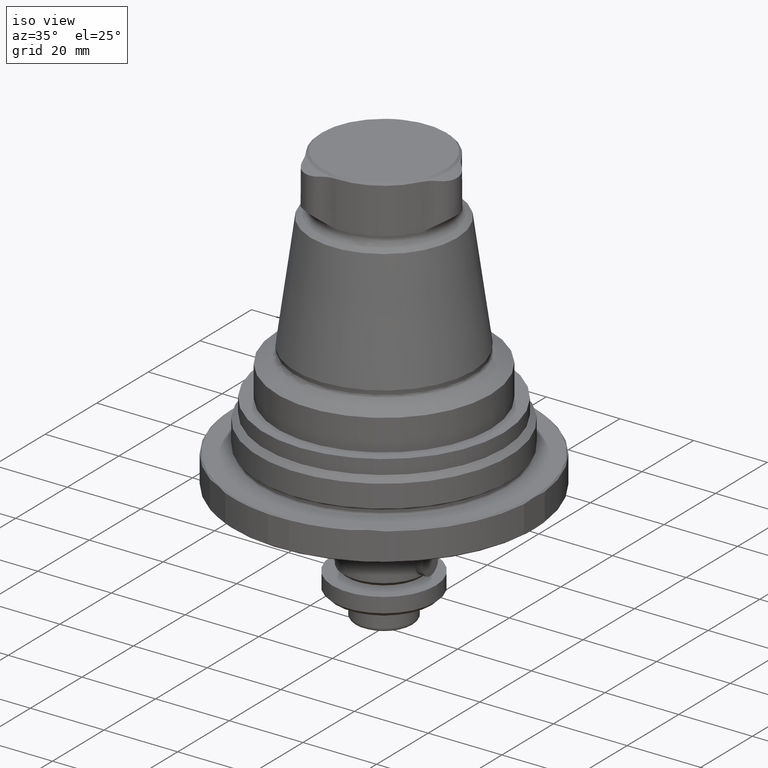
[diagram: clean part render]
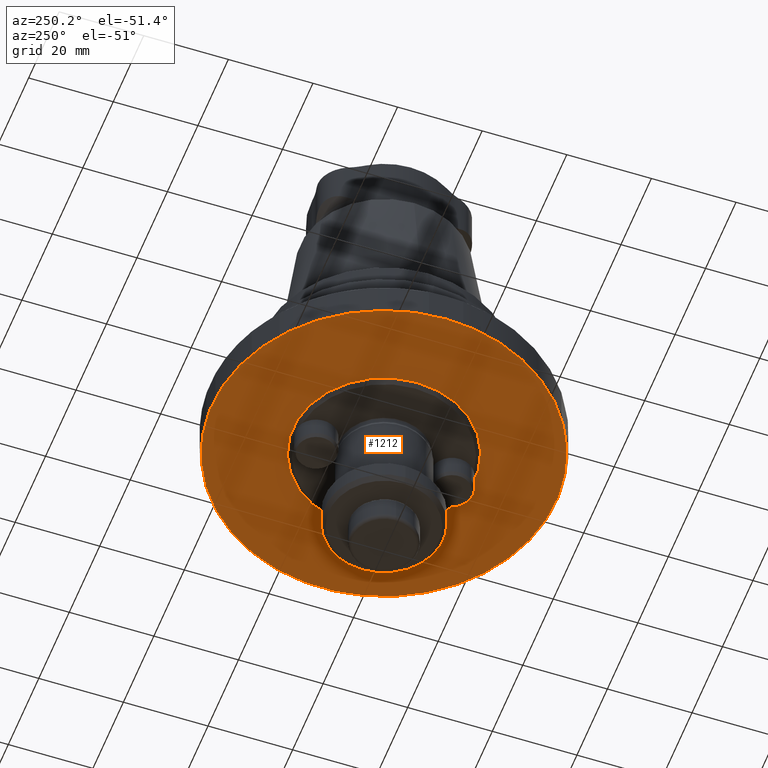
[diagram: tour spotlight — one face highlighted and labeled with its STEP entity id]
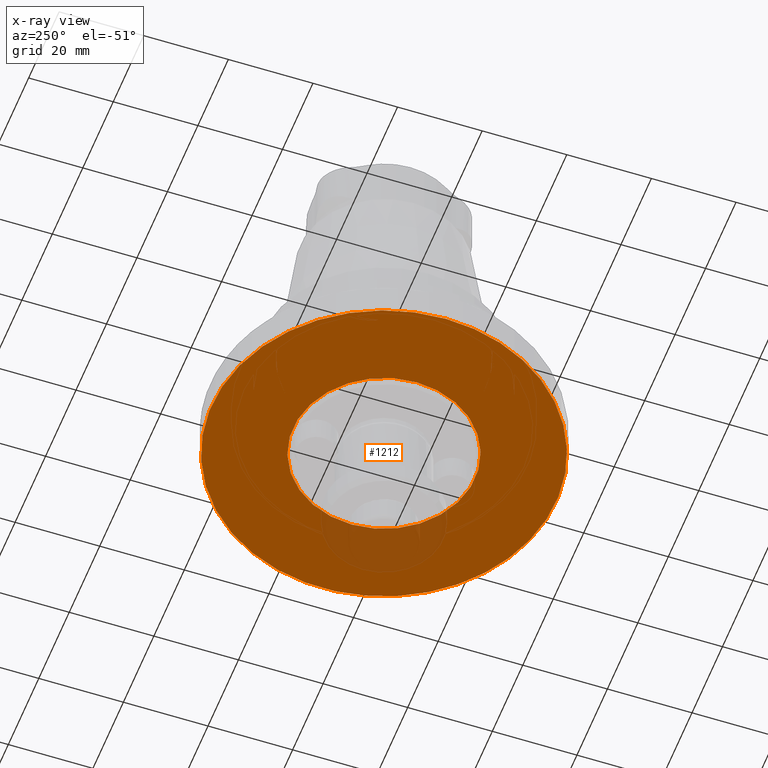
[diagram: x-ray of the same camera — body ghosted, this tour face saturated]
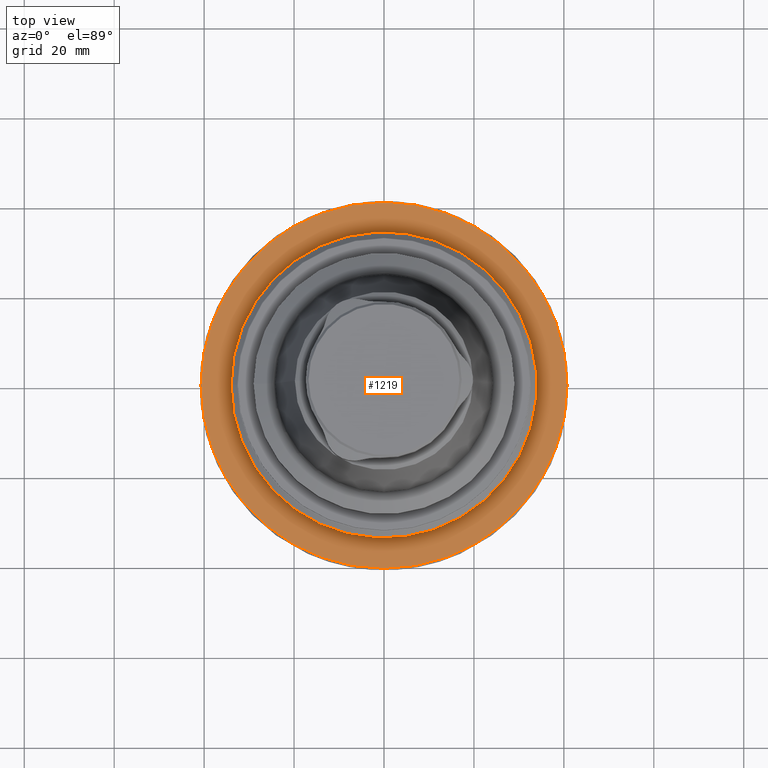
[diagram: tour spotlight — one face highlighted and labeled with its STEP entity id]
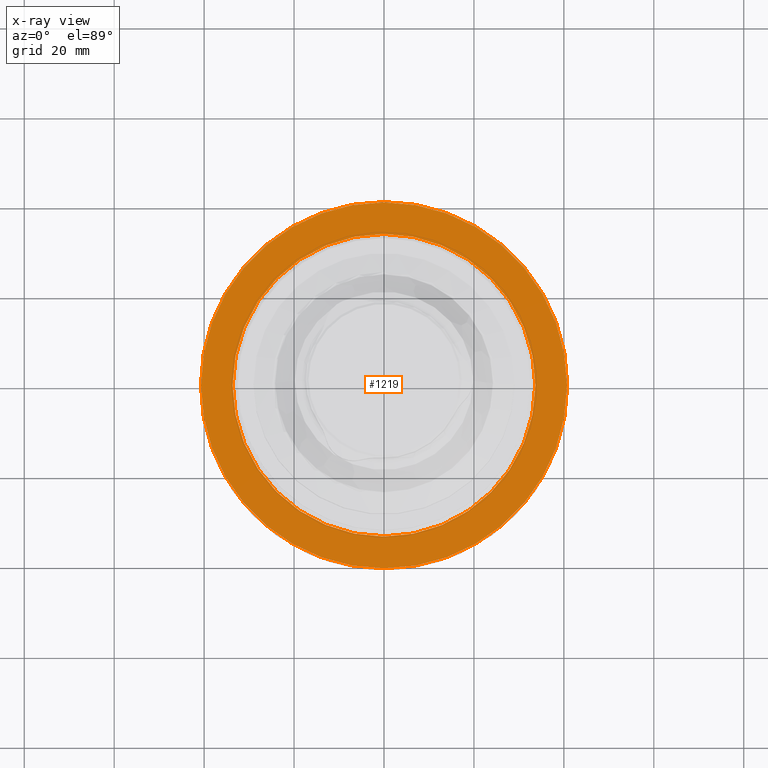
[diagram: x-ray of the same camera — body ghosted, this tour face saturated]
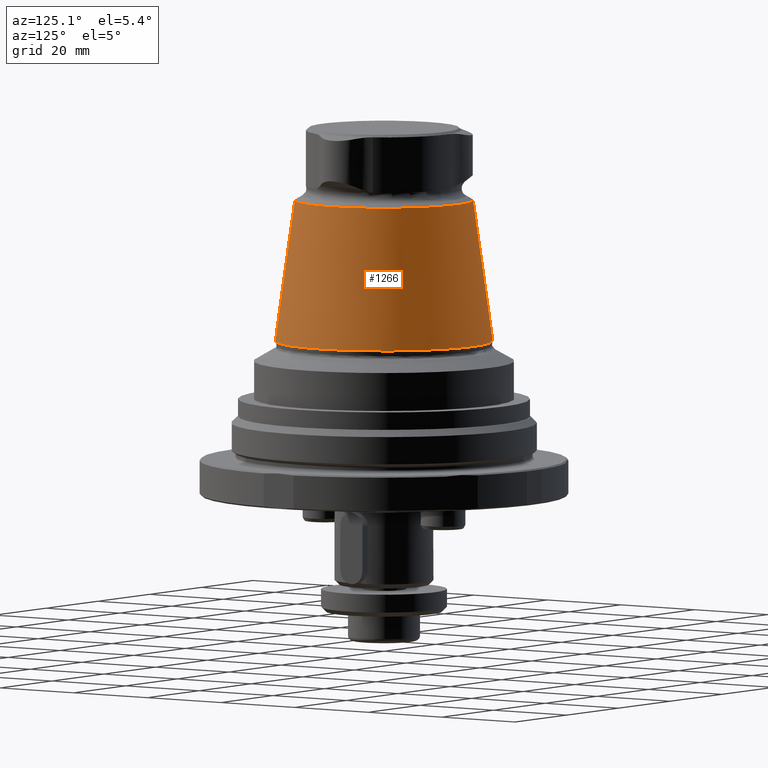
[diagram: tour spotlight — one face highlighted and labeled with its STEP entity id]
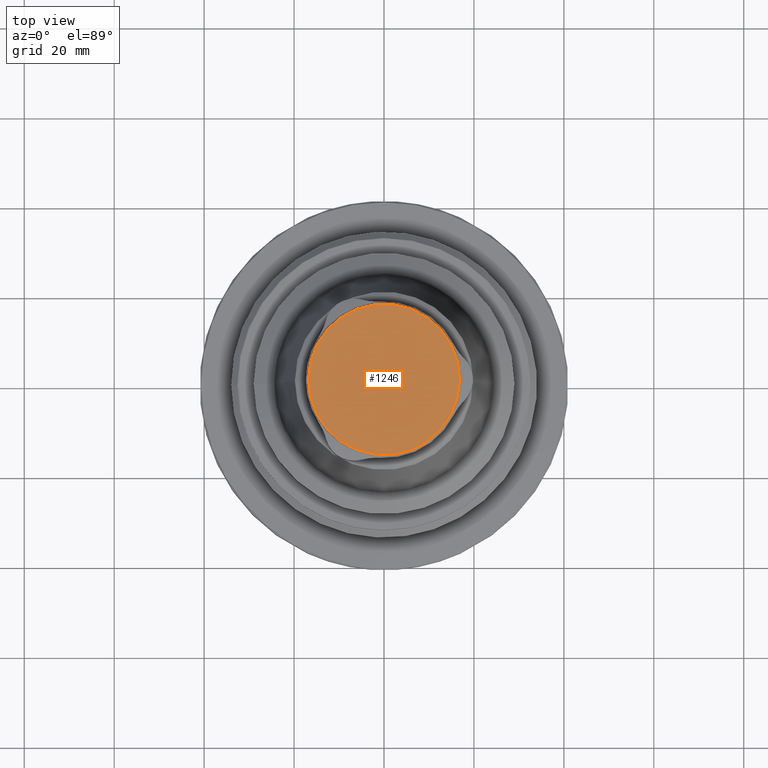
[diagram: tour spotlight — one face highlighted and labeled with its STEP entity id]
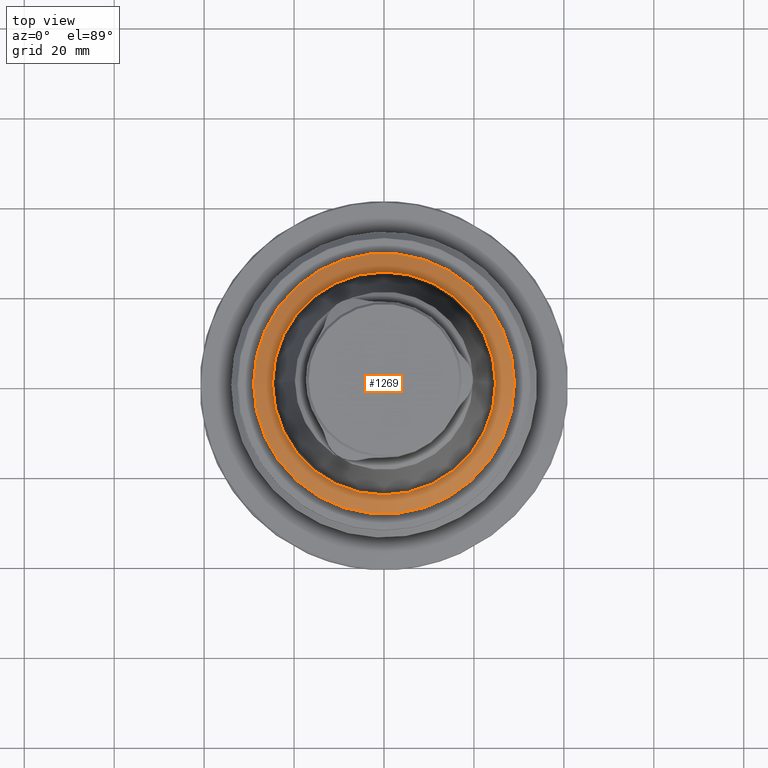
[diagram: tour spotlight — one face highlighted and labeled with its STEP entity id]
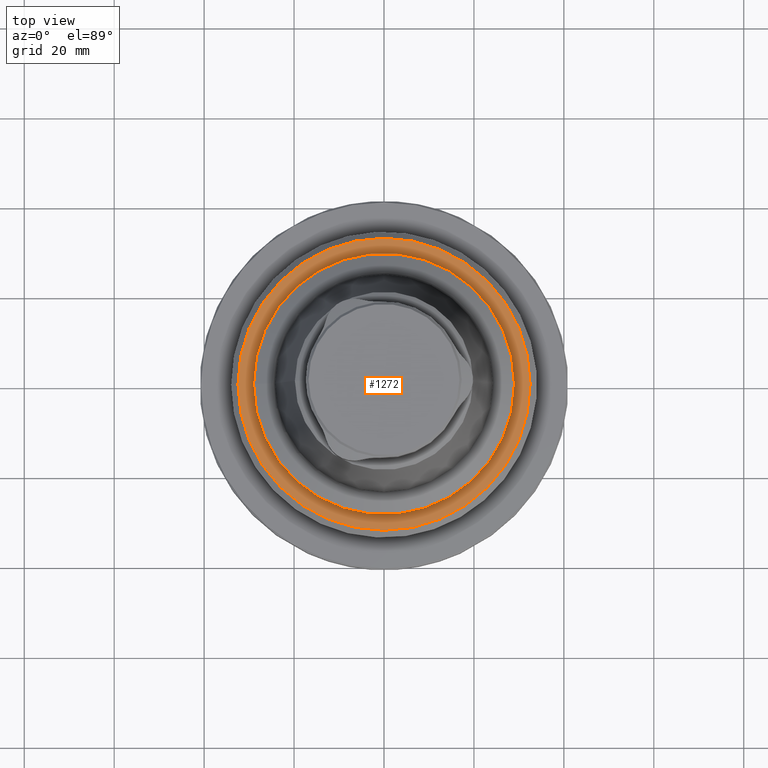
[diagram: tour spotlight — one face highlighted and labeled with its STEP entity id]
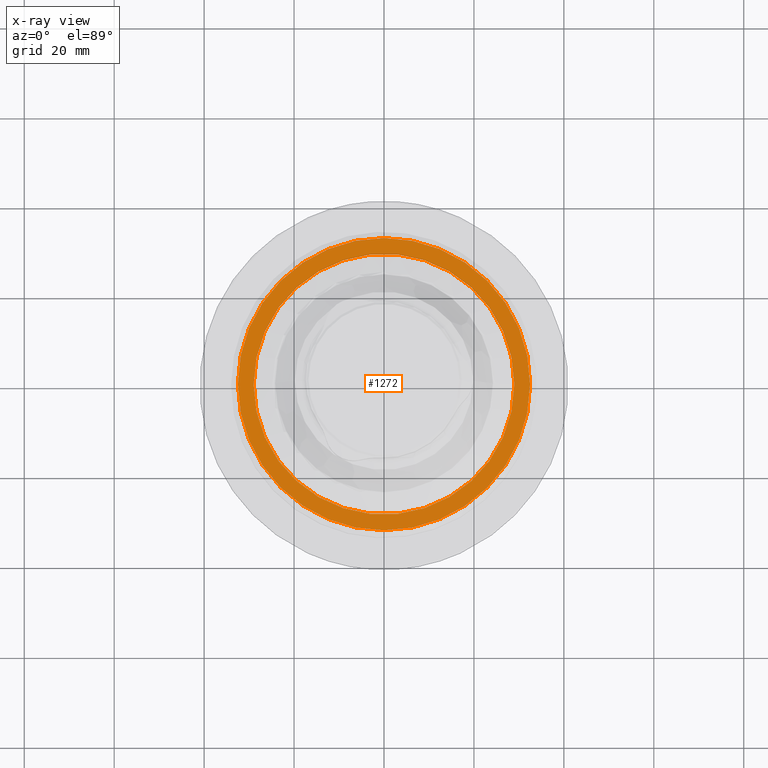
[diagram: x-ray of the same camera — body ghosted, this tour face saturated]
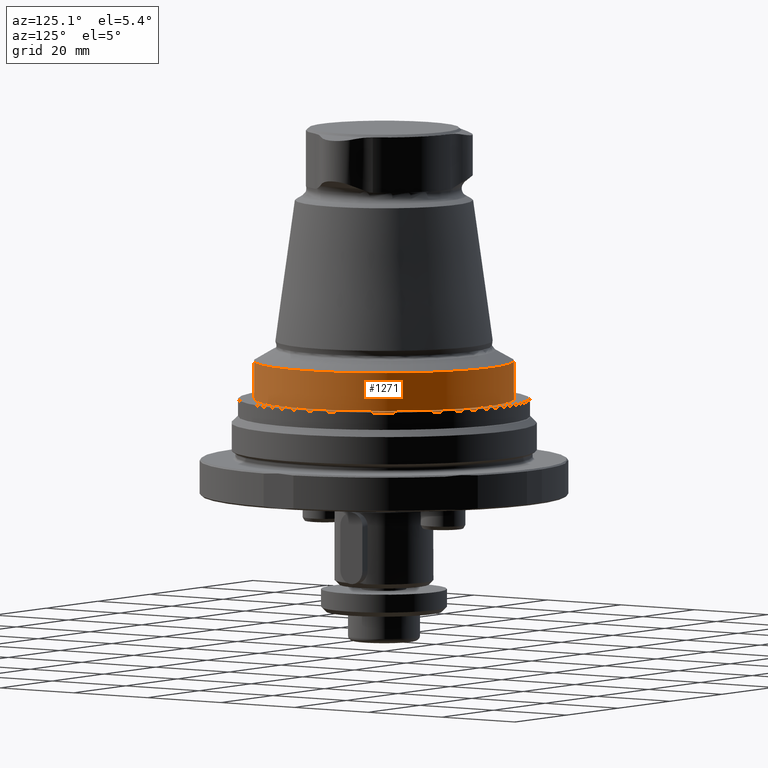
[diagram: tour spotlight — one face highlighted and labeled with its STEP entity id]
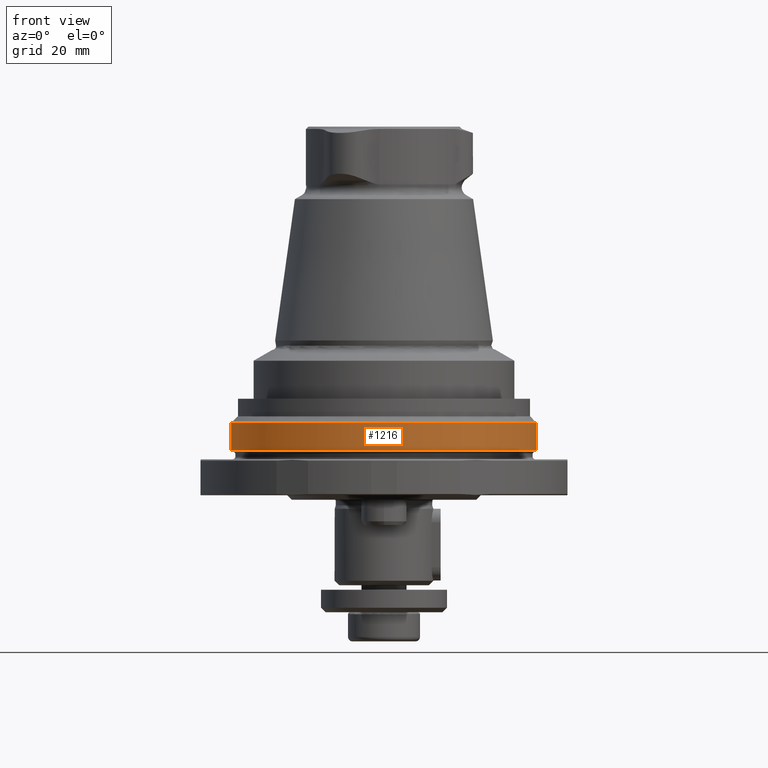
[diagram: tour spotlight — one face highlighted and labeled with its STEP entity id]
A machine part: a face-by-face anatomy tour. The part has 88 B-rep faces; the first image is the clean iso view, then the 8 largest visible faces are spotlighted one at a time (largest first), each with its STEP entity span.

Face 1 — auxiliary view, entity #1212. An x-ray twin of the same camera follows (body ghosted, this face saturated) — the face is partly hidden behind the body. In plain terms, the highlighted planar face has unit normal (0, -0, -1).
Definition (entity closure, byte-faithful):
#175=PLANE('',#1343);
#312=ORIENTED_EDGE('',*,*,#562,.T.);
#313=ORIENTED_EDGE('',*,*,#600,.T.);
#562=EDGE_CURVE('',#726,#726,#846,.F.);
#600=EDGE_CURVE('',#753,#753,#867,.T.);
#726=VERTEX_POINT('',#1855);
#753=VERTEX_POINT('',#1959);
#846=CIRCLE('',#1300,21.5);
#867=CIRCLE('',#1344,40.7);
#960=EDGE_LOOP('',(#312));
#961=EDGE_LOOP('',(#313));
#1090=FACE_BOUND('',#960,.T.);
#1091=FACE_BOUND('',#961,.T.);
#1212=ADVANCED_FACE('',(#1090,#1091),#175,.T.);
#1300=AXIS2_PLACEMENT_3D('',#1854,#1483,#1484);
#1343=AXIS2_PLACEMENT_3D('',#1957,#1582,#1583);
#1344=AXIS2_PLACEMENT_3D('',#1958,#1584,#1585);
#1483=DIRECTION('',(1.22461692971323E-16,-7.49836836562635E-33,-1.));
#1484=DIRECTION('',(-1.,0.,-1.22461692971323E-16));
#1582=DIRECTION('',(1.22461692971323E-16,-7.49836836562635E-33,-1.));
#1583=DIRECTION('',(-1.,6.12303176911189E-17,-1.22461692971323E-16));
#1584=DIRECTION('',(2.37516272644386E-69,1.04225259501902E-17,-1.));
#1585=DIRECTION('',(-1.,0.,0.));
#1854=CARTESIAN_POINT('',(0.,0.,-9.));
#1855=CARTESIAN_POINT('',(-21.5,0.,-9.));
#1957=CARTESIAN_POINT('',(-30.5,1.86752468957913E-15,-9.));
#1958=CARTESIAN_POINT('',(7.88665112559661E-15,1.83436456723348E-16,-9.00000000000001));
#1959=CARTESIAN_POINT('',(-40.7,1.83436456723348E-16,-9.00000000000001));

Face 2 — top view, entity #1219. An x-ray twin of the same camera follows (body ghosted, this face saturated) — the face is partly hidden behind the body. In plain terms, the highlighted planar face has unit normal (0, 0, -1).
Definition (entity closure, byte-faithful):
#176=PLANE('',#1357);
#326=ORIENTED_EDGE('',*,*,#606,.T.);
#327=ORIENTED_EDGE('',*,*,#607,.F.);
#606=EDGE_CURVE('',#759,#759,#873,.T.);
#607=EDGE_CURVE('',#760,#760,#874,.T.);
#759=VERTEX_POINT('',#1977);
#760=VERTEX_POINT('',#1980);
#873=CIRCLE('',#1356,33.65);
#874=CIRCLE('',#1358,40.7);
#974=EDGE_LOOP('',(#326));
#975=EDGE_LOOP('',(#327));
#1104=FACE_BOUND('',#974,.T.);
#1105=FACE_BOUND('',#975,.T.);
#1219=ADVANCED_FACE('',(#1104,#1105),#176,.F.);
#1356=AXIS2_PLACEMENT_3D('',#1976,#1608,#1609);
#1357=AXIS2_PLACEMENT_3D('',#1978,#1610,#1611);
#1358=AXIS2_PLACEMENT_3D('',#1979,#1612,#1613);
#1608=DIRECTION('',(2.37516272644386E-69,1.04225259501902E-17,-1.));
#1609=DIRECTION('',(-1.,0.,0.));
#1610=DIRECTION('',(2.37516272644386E-69,1.04225259501902E-17,-1.));
#1611=DIRECTION('',(-1.,0.,0.));
#1612=DIRECTION('',(2.37516272644386E-69,1.04225259501902E-17,-1.));
#1613=DIRECTION('',(-1.,0.,0.));
#1976=CARTESIAN_POINT('',(7.88665112559661E-15,1.00056249121826E-16,-1.00000000000001));
#1977=CARTESIAN_POINT('',(-33.65,1.00056249121826E-16,-1.00000000000001));
#1978=CARTESIAN_POINT('',(-33.65,1.00056249121826E-16,-1.00000000000001));
#1979=CARTESIAN_POINT('',(7.88665112559661E-15,1.00056249121826E-16,-1.00000000000001));
#1980=CARTESIAN_POINT('',(-40.7,1.00056249121826E-16,-1.00000000000001));

Face 3 — auxiliary view, entity #1266. In plain terms, the highlighted conical surface has half-angle 7.95 deg.
Definition (entity closure, byte-faithful):
#162=CONICAL_SURFACE('',#1440,24.2110659529869,0.138753675533549);
#539=ORIENTED_EDGE('',*,*,#710,.T.);
#540=ORIENTED_EDGE('',*,*,#711,.F.);
#710=EDGE_CURVE('',#830,#830,#909,.T.);
#711=EDGE_CURVE('',#831,#831,#910,.T.);
#830=VERTEX_POINT('',#2343);
#831=VERTEX_POINT('',#2346);
#909=CIRCLE('',#1439,19.820622068747);
#910=CIRCLE('',#1441,24.2110659529869);
#1032=EDGE_LOOP('',(#539));
#1033=EDGE_LOOP('',(#540));
#1162=FACE_BOUND('',#1032,.T.);
#1163=FACE_BOUND('',#1033,.T.);
#1266=ADVANCED_FACE('',(#1162,#1163),#162,.T.);
#1439=AXIS2_PLACEMENT_3D('',#2342,#1802,#1803);
#1440=AXIS2_PLACEMENT_3D('',#2344,#1804,#1805);
#1441=AXIS2_PLACEMENT_3D('',#2345,#1806,#1807);
#1802=DIRECTION('',(1.22461692971323E-16,-7.49836836562635E-33,-1.));
#1803=DIRECTION('',(-1.,6.12303176911189E-17,-1.22461692971323E-16));
#1804=DIRECTION('',(1.22461692971323E-16,-7.49836836562635E-33,-1.));
#1805=DIRECTION('',(-1.,6.12303176911189E-17,-1.22461692971323E-16));
#1806=DIRECTION('',(1.22461692971323E-16,-7.49836836562635E-33,-1.));
#1807=DIRECTION('',(-1.,6.12303176911189E-17,-1.22461692971323E-16));
#2342=CARTESIAN_POINT('',(1.97634923270405E-15,-1.21012491387068E-31,56.8624545642742));
#2343=CARTESIAN_POINT('',(-19.820622068747,1.21362298610498E-15,56.8624545642742));
#2344=CARTESIAN_POINT('',(5.82638272995627E-15,-3.56751265545271E-31,25.4237784865737));
#2345=CARTESIAN_POINT('',(5.82638272995627E-15,-3.56751265545271E-31,25.4237784865737));
#2346=CARTESIAN_POINT('',(-24.2110659529869,1.48245125994202E-15,25.4237784865737));

Face 4 — top view, entity #1246. In plain terms, the highlighted planar face has unit normal (-0, 0, 1).
Definition (entity closure, byte-faithful):
#189=PLANE('',#1407);
#442=ORIENTED_EDGE('',*,*,#662,.F.);
#662=EDGE_CURVE('',#797,#797,#897,.T.);
#797=VERTEX_POINT('',#2147);
#897=CIRCLE('',#1408,16.78);
#1008=EDGE_LOOP('',(#442));
#1138=FACE_BOUND('',#1008,.T.);
#1246=ADVANCED_FACE('',(#1138),#189,.T.);
#1407=AXIS2_PLACEMENT_3D('',#2145,#1726,#1727);
#1408=AXIS2_PLACEMENT_3D('',#2146,#1728,#1729);
#1726=DIRECTION('',(-1.22461692971323E-16,7.49836836562635E-33,1.));
#1727=DIRECTION('',(1.,-6.12303176911189E-17,1.22461692971323E-16));
#1728=DIRECTION('',(1.22461692971323E-16,-7.49836836562635E-33,-1.));
#1729=DIRECTION('',(-1.,6.12303176911189E-17,-1.22461692971323E-16));
#2145=CARTESIAN_POINT('',(-16.78,1.02744473085697E-15,73.));
#2146=CARTESIAN_POINT('',(1.18098243419732E-19,-7.23119296335328E-36,73.));
#2147=CARTESIAN_POINT('',(-16.78,1.02744473085697E-15,73.));

Face 5 — top view, entity #1269. In plain terms, the highlighted conical surface has half-angle 60 deg.
Definition (entity closure, byte-faithful):
#164=CONICAL_SURFACE('',#1446,29.,1.0471975511966);
#545=ORIENTED_EDGE('',*,*,#713,.T.);
#546=ORIENTED_EDGE('',*,*,#714,.F.);
#713=EDGE_CURVE('',#833,#833,#912,.T.);
#714=EDGE_CURVE('',#834,#834,#913,.T.);
#833=VERTEX_POINT('',#2352);
#834=VERTEX_POINT('',#2355);
#912=CIRCLE('',#1445,24.8);
#913=CIRCLE('',#1447,29.);
#1038=EDGE_LOOP('',(#545));
#1039=EDGE_LOOP('',(#546));
#1168=FACE_BOUND('',#1038,.T.);
#1169=FACE_BOUND('',#1039,.T.);
#1269=ADVANCED_FACE('',(#1168,#1169),#164,.T.);
#1445=AXIS2_PLACEMENT_3D('',#2351,#1814,#1815);
#1446=AXIS2_PLACEMENT_3D('',#2353,#1816,#1817);
#1447=AXIS2_PLACEMENT_3D('',#2354,#1818,#1819);
#1814=DIRECTION('',(1.22461692971323E-16,-7.49836836562635E-33,-1.));
#1815=DIRECTION('',(-1.,6.12303176911189E-17,-1.22461692971323E-16));
#1816=DIRECTION('',(1.22461692971323E-16,-7.49836836562635E-33,-1.));
#1817=DIRECTION('',(-1.,6.12303176911189E-17,-1.22461692971323E-16));
#1818=DIRECTION('',(1.22461692971323E-16,-7.49836836562635E-33,-1.));
#1819=DIRECTION('',(-1.,6.12303176911189E-17,-1.22461692971323E-16));
#2351=CARTESIAN_POINT('',(6.07951171463002E-15,-3.72250433693675E-31,23.3567730538379));
#2352=CARTESIAN_POINT('',(-24.8,1.51851187873975E-15,23.3567730538379));
#2353=CARTESIAN_POINT('',(6.37646553852014E-15,-3.9043301067006E-31,20.9319019232415));
#2354=CARTESIAN_POINT('',(6.37646553852014E-15,-3.9043301067006E-31,20.9319019232415));
#2355=CARTESIAN_POINT('',(-29.,1.77567921304245E-15,20.9319019232415));

Face 6 — top view, entity #1272. An x-ray twin of the same camera follows (body ghosted, this face saturated) — the face is partly hidden behind the body. In plain terms, the highlighted planar face has unit normal (0, -0, 1).
Definition (entity closure, byte-faithful):
#190=PLANE('',#1452);
#551=ORIENTED_EDGE('',*,*,#715,.F.);
#552=ORIENTED_EDGE('',*,*,#716,.T.);
#715=EDGE_CURVE('',#835,#835,#914,.T.);
#716=EDGE_CURVE('',#836,#836,#915,.T.);
#835=VERTEX_POINT('',#2358);
#836=VERTEX_POINT('',#2361);
#914=CIRCLE('',#1449,32.48);
#915=CIRCLE('',#1451,29.);
#1044=EDGE_LOOP('',(#551));
#1045=EDGE_LOOP('',(#552));
#1174=FACE_BOUND('',#1044,.T.);
#1175=FACE_BOUND('',#1045,.T.);
#1272=ADVANCED_FACE('',(#1174,#1175),#190,.T.);
#1449=AXIS2_PLACEMENT_3D('',#2357,#1822,#1823);
#1451=AXIS2_PLACEMENT_3D('',#2360,#1826,#1827);
#1452=AXIS2_PLACEMENT_3D('',#2362,#1828,#1829);
#1822=DIRECTION('',(-7.81689446264268E-18,6.38359491786664E-17,-1.));
#1823=DIRECTION('',(-1.,6.12303176911189E-17,7.81689446264269E-18));
#1826=DIRECTION('',(1.22461692971323E-16,-7.49836836562635E-33,-1.));
#1827=DIRECTION('',(-1.,6.12303176911189E-17,-1.22461692971323E-16));
#1828=DIRECTION('',(7.81689446264268E-18,-6.38359491786664E-17,1.));
#1829=DIRECTION('',(6.12303176911189E-17,1.,6.38359491786664E-17));
#2357=CARTESIAN_POINT('',(7.91682433822241E-15,-1.00577375419341E-17,12.46));
#2358=CARTESIAN_POINT('',(-32.48,1.97870298106561E-15,12.46));
#2360=CARTESIAN_POINT('',(7.4139489907273E-15,-4.53958452047983E-31,12.46));
#2361=CARTESIAN_POINT('',(-29.,1.77567921304245E-15,12.46));
#2362=CARTESIAN_POINT('',(7.91682433822241E-15,-1.00577375419341E-17,12.46));

Face 7 — auxiliary view, entity #1271. In plain terms, the highlighted cylindrical surface (bore or boss wall) has radius 29 mm, axis along (0, -0, -1).
Definition (entity closure, byte-faithful):
#224=CYLINDRICAL_SURFACE('',#1450,29.);
#549=ORIENTED_EDGE('',*,*,#714,.T.);
#550=ORIENTED_EDGE('',*,*,#716,.F.);
#714=EDGE_CURVE('',#834,#834,#913,.T.);
#716=EDGE_CURVE('',#836,#836,#915,.T.);
#834=VERTEX_POINT('',#2355);
#836=VERTEX_POINT('',#2361);
#913=CIRCLE('',#1447,29.);
#915=CIRCLE('',#1451,29.);
#1042=EDGE_LOOP('',(#549));
#1043=EDGE_LOOP('',(#550));
#1172=FACE_BOUND('',#1042,.T.);
#1173=FACE_BOUND('',#1043,.T.);
#1271=ADVANCED_FACE('',(#1172,#1173),#224,.T.);
#1447=AXIS2_PLACEMENT_3D('',#2354,#1818,#1819);
#1450=AXIS2_PLACEMENT_3D('',#2359,#1824,#1825);
#1451=AXIS2_PLACEMENT_3D('',#2360,#1826,#1827);
#1818=DIRECTION('',(1.22461692971323E-16,-7.49836836562635E-33,-1.));
#1819=DIRECTION('',(-1.,6.12303176911189E-17,-1.22461692971323E-16));
#1824=DIRECTION('',(1.22461692971323E-16,-7.49836836562635E-33,-1.));
#1825=DIRECTION('',(-1.,6.12303176911189E-17,-1.22461692971323E-16));
#1826=DIRECTION('',(1.22461692971323E-16,-7.49836836562635E-33,-1.));
#1827=DIRECTION('',(-1.,6.12303176911189E-17,-1.22461692971323E-16));
#2354=CARTESIAN_POINT('',(6.37646553852014E-15,-3.9043301067006E-31,20.9319019232415));
#2355=CARTESIAN_POINT('',(-29.,1.77567921304245E-15,20.9319019232415));
#2359=CARTESIAN_POINT('',(0.,0.,73.0009643688614));
#2360=CARTESIAN_POINT('',(7.4139489907273E-15,-4.53958452047983E-31,12.46));
#2361=CARTESIAN_POINT('',(-29.,1.77567921304245E-15,12.46));

Face 8 — front view, entity #1216. In plain terms, the highlighted cylindrical surface (bore or boss wall) has radius 34 mm, axis along (0, 0, -1).
Definition (entity closure, byte-faithful):
#200=CYLINDRICAL_SURFACE('',#1352,34.);
#320=ORIENTED_EDGE('',*,*,#604,.F.);
#321=ORIENTED_EDGE('',*,*,#605,.T.);
#604=EDGE_CURVE('',#757,#757,#871,.T.);
#605=EDGE_CURVE('',#758,#758,#872,.T.);
#757=VERTEX_POINT('',#1970);
#758=VERTEX_POINT('',#1973);
#871=CIRCLE('',#1351,34.);
#872=CIRCLE('',#1353,34.);
#968=EDGE_LOOP('',(#320));
#969=EDGE_LOOP('',(#321));
#1098=FACE_BOUND('',#968,.T.);
#1099=FACE_BOUND('',#969,.T.);
#1216=ADVANCED_FACE('',(#1098,#1099),#200,.T.);
#1351=AXIS2_PLACEMENT_3D('',#1969,#1598,#1599);
#1352=AXIS2_PLACEMENT_3D('',#1971,#1600,#1601);
#1353=AXIS2_PLACEMENT_3D('',#1972,#1602,#1603);
#1598=DIRECTION('',(2.37516272644386E-69,1.04225259501902E-17,-1.));
#1599=DIRECTION('',(-1.,0.,0.));
#1600=DIRECTION('',(2.37516272644386E-69,1.04225259501902E-17,-1.));
#1601=DIRECTION('',(-1.,0.,0.));
#1602=DIRECTION('',(2.37516272644386E-69,1.04225259501902E-17,-1.));
#1603=DIRECTION('',(-1.,0.,0.));
#1969=CARTESIAN_POINT('',(7.88665112559661E-15,7.92111972214454E-17,0.999999999999992));
#1970=CARTESIAN_POINT('',(-34.,7.92111972214454E-17,0.999999999999992));
#1971=CARTESIAN_POINT('',(7.88665112559661E-15,1.00056249121826E-16,-1.00000000000001));
#1972=CARTESIAN_POINT('',(7.88665112559661E-15,1.56337889252849E-17,7.09999999999999));
#1973=CARTESIAN_POINT('',(-34.,1.56337889252849E-17,7.09999999999999));